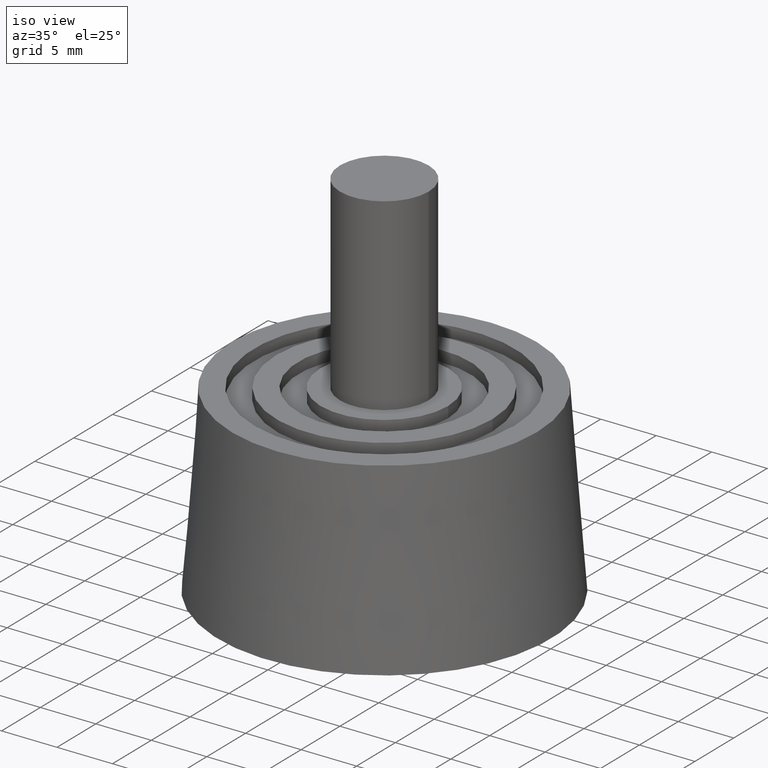
[diagram: clean part render]
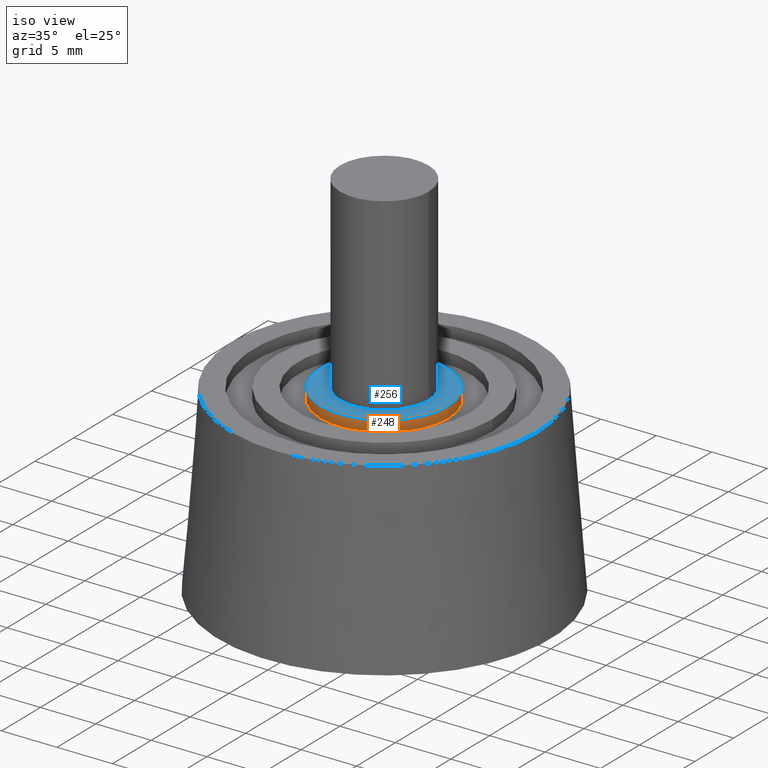
[diagram: same view with the hole feature highlighted: cylindrical wall and planar end face, labeled with their STEP entity ids]
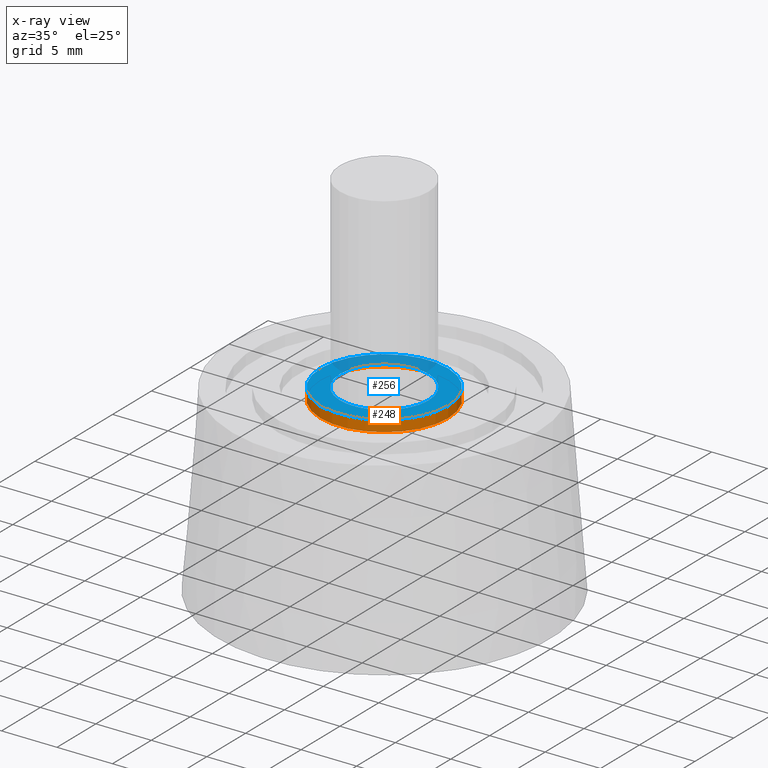
[diagram: x-ray of the same camera — body ghosted, the hole faces saturated]
A machine part, iso view. The highlighted faces form one hole feature of diameter 11.5 mm: the cylindrical wall (entity #248, orange) and its adjacent planar end face (entity #256, blue) — they share a circular edge in the B-rep.
The next image is the same camera in x-ray (body ghosted, the hole faces saturated) — the bore reads through the body.
Wall:
#38=FACE_BOUND('',#95,.T.);
#61=FACE_OUTER_BOUND('',#94,.T.);
#94=EDGE_LOOP('',(#204));
#95=EDGE_LOOP('',(#205));
#129=CIRCLE('',#287,5.75);
#130=CIRCLE('',#288,5.75);
#151=VERTEX_POINT('',#438);
#152=VERTEX_POINT('',#440);
#173=EDGE_CURVE('',#151,#151,#129,.T.);
#174=EDGE_CURVE('',#152,#152,#130,.T.);
#204=ORIENTED_EDGE('',*,*,#173,.T.);
#205=ORIENTED_EDGE('',*,*,#174,.F.);
#232=CYLINDRICAL_SURFACE('',#286,5.75);
#248=ADVANCED_FACE('',(#61,#38),#232,.T.);
#286=AXIS2_PLACEMENT_3D('',#437,#358,#359);
#287=AXIS2_PLACEMENT_3D('',#439,#360,#361);
#288=AXIS2_PLACEMENT_3D('',#441,#362,#363);
#358=DIRECTION('center_axis',(0.,0.,-1.));
#359=DIRECTION('ref_axis',(-1.,0.,0.));
#360=DIRECTION('center_axis',(0.,0.,1.));
#361=DIRECTION('ref_axis',(-1.,0.,0.));
#362=DIRECTION('center_axis',(0.,0.,1.));
#363=DIRECTION('ref_axis',(-1.,0.,0.));
#437=CARTESIAN_POINT('Origin',(0.,0.,16.5));
#438=CARTESIAN_POINT('',(5.75,7.04171909509728E-16,15.5));
#439=CARTESIAN_POINT('Origin',(0.,0.,15.5));
#440=CARTESIAN_POINT('',(5.75,7.04171909509728E-16,16.5));
#441=CARTESIAN_POINT('Origin',(0.,0.,16.5));
End face:
#26=PLANE('',#303);
#46=FACE_BOUND('',#111,.T.);
#69=FACE_OUTER_BOUND('',#110,.T.);
#110=EDGE_LOOP('',(#220));
#111=EDGE_LOOP('',(#221));
#117=CIRCLE('',#263,4.);
#130=CIRCLE('',#288,5.75);
#139=VERTEX_POINT('',#402);
#152=VERTEX_POINT('',#440);
#161=EDGE_CURVE('',#139,#139,#117,.T.);
#174=EDGE_CURVE('',#152,#152,#130,.T.);
#220=ORIENTED_EDGE('',*,*,#174,.T.);
#221=ORIENTED_EDGE('',*,*,#161,.T.);
#256=ADVANCED_FACE('',(#69,#46),#26,.F.);
#263=AXIS2_PLACEMENT_3D('',#403,#312,#313);
#288=AXIS2_PLACEMENT_3D('',#441,#362,#363);
#303=AXIS2_PLACEMENT_3D('',#463,#392,#393);
#312=DIRECTION('center_axis',(0.,0.,-1.));
#313=DIRECTION('ref_axis',(-1.,0.,0.));
#362=DIRECTION('center_axis',(0.,0.,1.));
#363=DIRECTION('ref_axis',(-1.,0.,0.));
#392=DIRECTION('center_axis',(0.,0.,-1.));
#393=DIRECTION('ref_axis',(-1.,0.,0.));
#402=CARTESIAN_POINT('',(4.,4.89858719658941E-16,16.5));
#403=CARTESIAN_POINT('Origin',(0.,0.,16.5));
#440=CARTESIAN_POINT('',(5.75,7.04171909509728E-16,16.5));
#441=CARTESIAN_POINT('Origin',(0.,0.,16.5));
#463=CARTESIAN_POINT('Origin',(0.,0.,16.5));